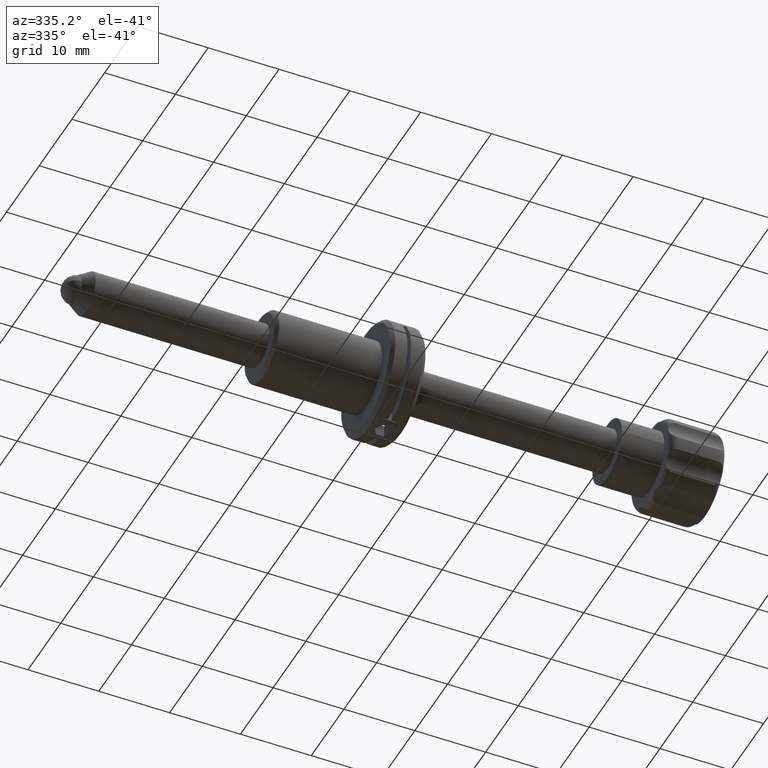
[diagram: clean part render]
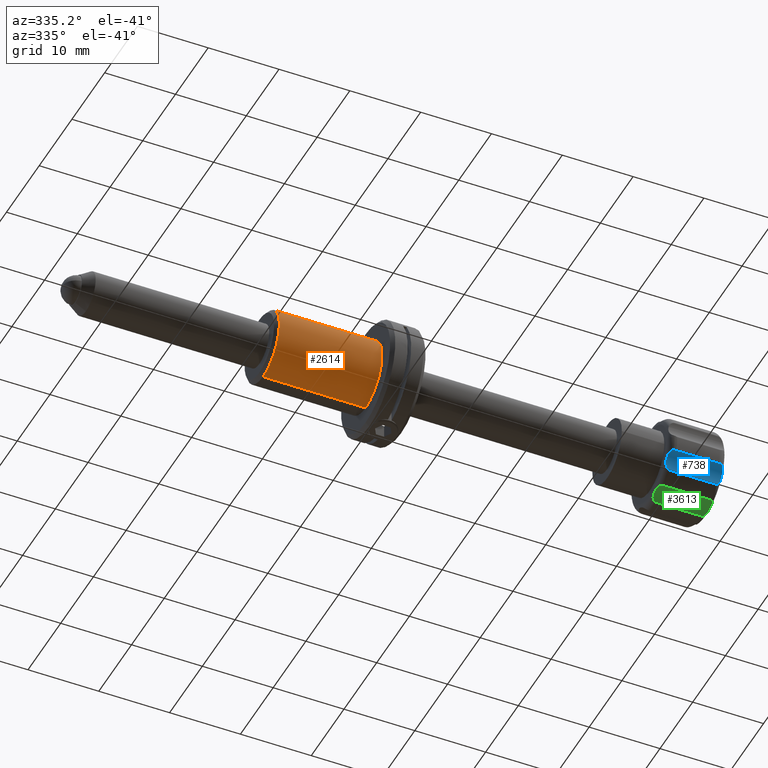
[diagram: same view with three faces highlighted in distinct colors, each labeled with its STEP entity id]
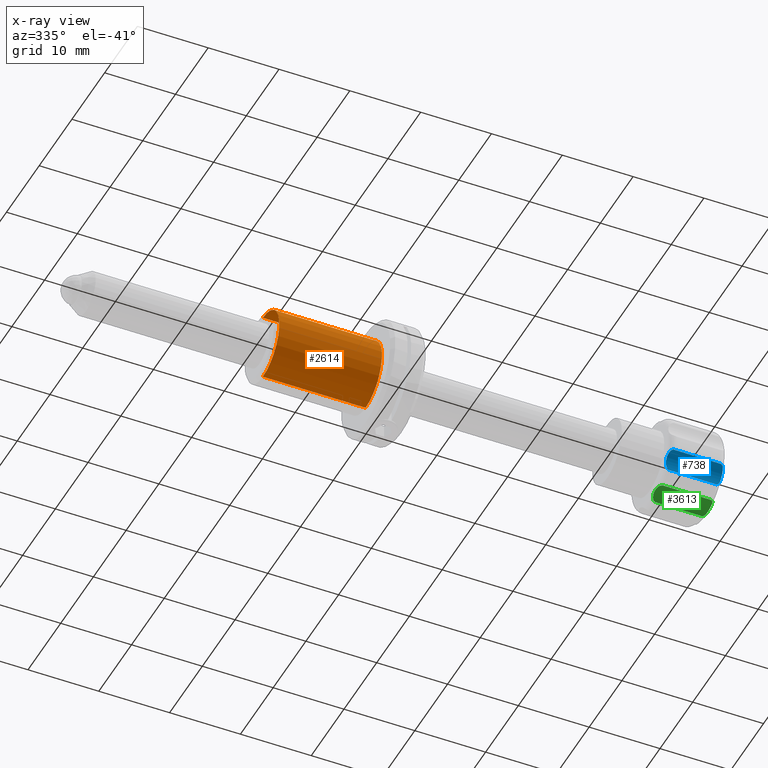
[diagram: x-ray of the same camera — body ghosted, the three highlighted faces saturated]
A machine part, auxiliary view with three faces highlighted in distinct colors.
The next image is the same camera in x-ray (body ghosted, the three faces saturated) — at least one of them is partly hidden behind the body in this view.
Their STEP definitions:

[orange] entity #2614 — the highlighted cylindrical surface (partial cylindrical patch) has radius 5 mm, axis along (-1, -0, -0).
#316 = CARTESIAN_POINT ( 'NONE',  ( -32.40644179797200800, 0.0000000000000000000, 4.999999999999999100 ) ) ;
#439 = VERTEX_POINT ( 'NONE', #4097 ) ;
#513 = VECTOR ( 'NONE', #2410, 1000.000000000000000 ) ;
#592 = AXIS2_PLACEMENT_3D ( 'NONE', #1815, #2129, #1830 ) ;
#719 = DIRECTION ( 'NONE',  ( 1.000000000000000000, 0.0000000000000000000, 0.0000000000000000000 ) ) ;
#775 = AXIS2_PLACEMENT_3D ( 'NONE', #3171, #1241, #3487 ) ;
#857 = ORIENTED_EDGE ( 'NONE', *, *, #3764, .F. ) ;
#1241 = DIRECTION ( 'NONE',  ( -1.000000000000000000, -0.0000000000000000000, -0.0000000000000000000 ) ) ;
#1321 = CIRCLE ( 'NONE', #2244, 4.999999999999999100 ) ;
#1343 = CARTESIAN_POINT ( 'NONE',  ( -14.54999999999999700, 6.123233995736765300E-016, -4.999999999999999100 ) ) ;
#1360 = ORIENTED_EDGE ( 'NONE', *, *, #3673, .T. ) ;
#1399 = VERTEX_POINT ( 'NONE', #3269 ) ;
#1651 = DIRECTION ( 'NONE',  ( -1.000000000000000000, -0.0000000000000000000, -0.0000000000000000000 ) ) ;
#1655 = CARTESIAN_POINT ( 'NONE',  ( -0.04999999999999449300, 6.123233995736766300E-016, -5.000000000000000000 ) ) ;
#1815 = CARTESIAN_POINT ( 'NONE',  ( -32.40644179797200800, 0.0000000000000000000, 0.0000000000000000000 ) ) ;
#1830 = DIRECTION ( 'NONE',  ( 0.0000000000000000000, 0.0000000000000000000, 1.000000000000000000 ) ) ;
#2086 = CARTESIAN_POINT ( 'NONE',  ( -32.40644179797200800, 6.123233995736765300E-016, -4.999999999999999100 ) ) ;
#2129 = DIRECTION ( 'NONE',  ( -1.000000000000000000, -0.0000000000000000000, -0.0000000000000000000 ) ) ;
#2138 = CIRCLE ( 'NONE', #775, 5.000000000000000000 ) ;
#2244 = AXIS2_PLACEMENT_3D ( 'NONE', #2662, #719, #2979 ) ;
#2410 = DIRECTION ( 'NONE',  ( -1.000000000000000000, -0.0000000000000000000, -0.0000000000000000000 ) ) ;
#2614 = ADVANCED_FACE ( 'NONE', ( #2880 ), #4095, .T. ) ;
#2662 = CARTESIAN_POINT ( 'NONE',  ( -14.54999999999999700, 0.0000000000000000000, 0.0000000000000000000 ) ) ;
#2771 = VERTEX_POINT ( 'NONE', #1655 ) ;
#2797 = VERTEX_POINT ( 'NONE', #1343 ) ;
#2880 = FACE_OUTER_BOUND ( 'NONE', #3482, .T. ) ;
#2979 = DIRECTION ( 'NONE',  ( 0.0000000000000000000, 0.0000000000000000000, -1.000000000000000000 ) ) ;
#3085 = VECTOR ( 'NONE', #1651, 1000.000000000000000 ) ;
#3090 = LINE ( 'NONE', #2086, #513 ) ;
#3127 = ORIENTED_EDGE ( 'NONE', *, *, #3486, .T. ) ;
#3171 = CARTESIAN_POINT ( 'NONE',  ( -0.04999999999999449300, 0.0000000000000000000, 0.0000000000000000000 ) ) ;
#3201 = EDGE_CURVE ( 'NONE', #1399, #439, #3937, .T. ) ;
#3269 = CARTESIAN_POINT ( 'NONE',  ( -0.04999999999999449300, 0.0000000000000000000, 5.000000000000000000 ) ) ;
#3389 = ORIENTED_EDGE ( 'NONE', *, *, #3201, .T. ) ;
#3482 = EDGE_LOOP ( 'NONE', ( #857, #3127, #3389, #1360 ) ) ;
#3486 = EDGE_CURVE ( 'NONE', #2771, #1399, #2138, .T. ) ;
#3487 = DIRECTION ( 'NONE',  ( 0.0000000000000000000, 0.0000000000000000000, 1.000000000000000000 ) ) ;
#3673 = EDGE_CURVE ( 'NONE', #439, #2797, #1321, .T. ) ;
#3764 = EDGE_CURVE ( 'NONE', #2771, #2797, #3090, .T. ) ;
#3937 = LINE ( 'NONE', #316, #3085 ) ;
#4095 = CYLINDRICAL_SURFACE ( 'NONE', #592, 4.999999999999999100 ) ;
#4097 = CARTESIAN_POINT ( 'NONE',  ( -14.54999999999999700, 0.0000000000000000000, 4.999999999999999100 ) ) ;

[blue] entity #738 — the highlighted cylindrical surface (edge-blend (fillet) strip) has radius 2.75 mm, axis along (-1, 0, -0).
#8 = ORIENTED_EDGE ( 'NONE', *, *, #572, .T. ) ;
#45 = CARTESIAN_POINT ( 'NONE',  ( 40.25804361074116100, -5.529702703571599500, -2.236683402746796600 ) ) ;
#64 = CARTESIAN_POINT ( 'NONE',  ( 40.13351138985506600, -4.878348550181328800, -3.046666745244276600 ) ) ;
#151 = CARTESIAN_POINT ( 'NONE',  ( 48.09076659436073700, -7.311137567084916400, -4.335581561354793200 ) ) ;
#370 = CARTESIAN_POINT ( 'NONE',  ( 40.44775316104475800, -5.810911346596066500, -2.028079787668628500 ) ) ;
#387 = CARTESIAN_POINT ( 'NONE',  ( 40.25821204246622600, -4.614926055760384400, -3.779552289039287400 ) ) ;
#417 = CARTESIAN_POINT ( 'NONE',  ( 40.53974654408667500, -4.562360833703431600, -4.226225560249417000 ) ) ;
#450 = CARTESIAN_POINT ( 'NONE',  ( 47.44732049996807900, -5.959700486087939500, -1.940562184375482600 ) ) ;
#572 = EDGE_CURVE ( 'NONE', #3771, #2854, #1881, .T. ) ;
#636 = ORIENTED_EDGE ( 'NONE', *, *, #637, .T. ) ;
#637 = EDGE_CURVE ( 'NONE', #2360, #3771, #858, .T. ) ;
#738 = ADVANCED_FACE ( 'NONE', ( #1389 ), #966, .F. ) ;
#755 = CARTESIAN_POINT ( 'NONE',  ( 47.44732049996807900, -5.959700486087939500, -1.940562184375482600 ) ) ;
#766 = CARTESIAN_POINT ( 'NONE',  ( 47.55905215516280300, -4.562350473330386800, -4.226994932551283700 ) ) ;
#858 = B_SPLINE_CURVE_WITH_KNOTS ( 'NONE', 3,
 ( #3033, #766, #2716, #1101, #3362, #3652, #1574, #1525, #2421, #1186, #1448, #1769, #2498, #1804, #3128, #870, #1164, #755 ),
 .UNSPECIFIED., .F., .F.,
 ( 4, 2, 2, 2, 2, 2, 2, 2, 4 ),
 ( 0.0004183084499995033700, 0.0008152739970678612600, 0.001212239544136219100, 0.001609205091204577100, 0.002006170638272934800, 0.002403136185341292800, 0.002800101732409650900, 0.003197067279478008500, 0.003594032826546366500 ),
 .UNSPECIFIED. ) ;
#870 = CARTESIAN_POINT ( 'NONE',  ( 47.65197480839385900, -5.811090463649204500, -2.027997261189377700 ) ) ;
#966 = CYLINDRICAL_SURFACE ( 'NONE', #4065, 2.749999999999999100 ) ;
#1101 = CARTESIAN_POINT ( 'NONE',  ( 47.79298408107022300, -4.593220206735229500, -3.901797778212949800 ) ) ;
#1164 = CARTESIAN_POINT ( 'NONE',  ( 47.56025345591332600, -5.896703292668299000, -1.976109597479680100 ) ) ;
#1186 = CARTESIAN_POINT ( 'NONE',  ( 47.96648861014491400, -5.013261247530604000, -2.819162020466631900 ) ) ;
#1197 = B_SPLINE_CURVE_WITH_KNOTS ( 'NONE', 3,
 ( #2629, #2958, #370, #2338, #45, #2005, #1702, #3604, #1368, #64, #2020, #3939, #2658, #387, #2350, #3348, #417, #3319 ),
 .UNSPECIFIED., .F., .F.,
 ( 4, 2, 2, 2, 2, 2, 2, 2, 4 ),
 ( 0.0004183084499995030900, 0.0008152739970678629900, 0.001212239544136222800, 0.001609205091204582800, 0.002006170638272942600, 0.002403136185341302400, 0.002800101732409662200, 0.003197067279478021900, 0.003594032826546381700 ),
 .UNSPECIFIED. ) ;
#1361 = ORIENTED_EDGE ( 'NONE', *, *, #1757, .T. ) ;
#1368 = CARTESIAN_POINT ( 'NONE',  ( 40.13345850479819200, -5.012315648373002500, -2.820595888153361500 ) ) ;
#1389 = FACE_OUTER_BOUND ( 'NONE', #2414, .T. ) ;
#1448 = CARTESIAN_POINT ( 'NONE',  ( 47.96078662551399000, -5.088099011018325500, -2.711415214625879900 ) ) ;
#1489 = VECTOR ( 'NONE', #3558, 1000.000000000000000 ) ;
#1518 = DIRECTION ( 'NONE',  ( -1.000000000000000000, 2.797561225103415000E-017, -1.489432096673009000E-016 ) ) ;
#1525 = CARTESIAN_POINT ( 'NONE',  ( 47.96074279915753600, -4.819425854650363700, -3.164612394226866700 ) ) ;
#1574 = CARTESIAN_POINT ( 'NONE',  ( 47.93351467224702100, -4.719053375038003000, -3.407736967908081100 ) ) ;
#1702 = CARTESIAN_POINT ( 'NONE',  ( 40.16648532775295200, -5.253676243472343200, -2.506196705703527300 ) ) ;
#1729 = CARTESIAN_POINT ( 'NONE',  ( 48.09076659436073700, -5.959700486098719300, -1.940562184369399200 ) ) ;
#1757 = EDGE_CURVE ( 'NONE', #2854, #2800, #1197, .T. ) ;
#1769 = CARTESIAN_POINT ( 'NONE',  ( 47.93359056029724700, -5.253340674784383600, -2.506568523226402800 ) ) ;
#1785 = VECTOR ( 'NONE', #3429, 1000.000000000000000 ) ;
#1804 = CARTESIAN_POINT ( 'NONE',  ( 47.84178795753376100, -5.529981407958628900, -2.236484659761846800 ) ) ;
#1881 = LINE ( 'NONE', #1729, #1785 ) ;
#2005 = CARTESIAN_POINT ( 'NONE',  ( 40.18767208449506300, -5.342440844706177700, -2.411233134368671500 ) ) ;
#2020 = CARTESIAN_POINT ( 'NONE',  ( 40.13921337448600500, -4.819702374864522000, -3.164015333362920800 ) ) ;
#2246 = LINE ( 'NONE', #2944, #1489 ) ;
#2318 = CARTESIAN_POINT ( 'NONE',  ( 40.65267950003190800, -4.561386866523674800, -4.298553399599728500 ) ) ;
#2338 = CARTESIAN_POINT ( 'NONE',  ( 40.30701591892974300, -5.626834790151411500, -2.158802449037434900 ) ) ;
#2350 = CARTESIAN_POINT ( 'NONE',  ( 40.30785379086182000, -4.592998944304817100, -3.903367445149767500 ) ) ;
#2360 = VERTEX_POINT ( 'NONE', #2627 ) ;
#2414 = EDGE_LOOP ( 'NONE', ( #1361, #3214, #636, #8 ) ) ;
#2421 = CARTESIAN_POINT ( 'NONE',  ( 47.96654149520178800, -4.879153136930129100, -3.045149255714306500 ) ) ;
#2498 = CARTESIAN_POINT ( 'NONE',  ( 47.91196777807302700, -5.343567414393134200, -2.410122457736372700 ) ) ;
#2627 = CARTESIAN_POINT ( 'NONE',  ( 47.44732049994645700, -4.561386866523487300, -4.298553399613564500 ) ) ;
#2629 = CARTESIAN_POINT ( 'NONE',  ( 40.65267950005351600, -5.959700486100000900, -1.940562184368677100 ) ) ;
#2658 = CARTESIAN_POINT ( 'NONE',  ( 40.18803222192695300, -4.677869858404243100, -3.532695367744360200 ) ) ;
#2716 = CARTESIAN_POINT ( 'NONE',  ( 47.65224683895524300, -4.566811295189091300, -4.126019013199321100 ) ) ;
#2800 = VERTEX_POINT ( 'NONE', #2318 ) ;
#2854 = VERTEX_POINT ( 'NONE', #2981 ) ;
#2944 = CARTESIAN_POINT ( 'NONE',  ( 48.09076659436073700, -4.561386866523507800, -4.298553399612095500 ) ) ;
#2958 = CARTESIAN_POINT ( 'NONE',  ( 40.54094784483715600, -5.897373412170500400, -1.975731469288455800 ) ) ;
#2981 = CARTESIAN_POINT ( 'NONE',  ( 40.65267950005351600, -5.959700486100000900, -1.940562184368677100 ) ) ;
#3033 = CARTESIAN_POINT ( 'NONE',  ( 47.44732049994645700, -4.561386866523487300, -4.298553399613564500 ) ) ;
#3128 = CARTESIAN_POINT ( 'NONE',  ( 47.79214620913817400, -5.628105970179328600, -2.157855394291265000 ) ) ;
#3214 = ORIENTED_EDGE ( 'NONE', *, *, #3243, .T. ) ;
#3243 = EDGE_CURVE ( 'NONE', #2800, #2360, #2246, .T. ) ;
#3319 = CARTESIAN_POINT ( 'NONE',  ( 40.65267950003190800, -4.561386866523674800, -4.298553399599728500 ) ) ;
#3348 = CARTESIAN_POINT ( 'NONE',  ( 40.44802519160614200, -4.566824797342886400, -4.126215764896519600 ) ) ;
#3362 = CARTESIAN_POINT ( 'NONE',  ( 47.84195638925881900, -4.614966760166447000, -3.779212409559546500 ) ) ;
#3429 = DIRECTION ( 'NONE',  ( -1.000000000000000000, 2.797561225103415000E-017, -1.489432096673009000E-016 ) ) ;
#3558 = DIRECTION ( 'NONE',  ( 1.000000000000000000, -2.797561225103415000E-017, 1.489432096673009000E-016 ) ) ;
#3604 = CARTESIAN_POINT ( 'NONE',  ( 40.13925720084244400, -5.088490268784309700, -2.710886194338314200 ) ) ;
#3652 = CARTESIAN_POINT ( 'NONE',  ( 47.91232791550491800, -4.678304055403286200, -3.531174106817645900 ) ) ;
#3771 = VERTEX_POINT ( 'NONE', #450 ) ;
#3938 = DIRECTION ( 'NONE',  ( 0.0000000000000000000, 0.9999319581571398700, 0.01166529279649605000 ) ) ;
#3939 = CARTESIAN_POINT ( 'NONE',  ( 40.16640943970274000, -4.719218668871253200, -3.407264175603425600 ) ) ;
#4065 = AXIS2_PLACEMENT_3D ( 'NONE', #151, #1518, #3938 ) ;

[green] entity #3613 — the highlighted cylindrical surface (edge-blend (fillet) strip) has radius 2.75 mm, axis along (-1, 0, -0).
#25 = CARTESIAN_POINT ( 'NONE',  ( 47.44732049994645700, -0.1858513267747641300, -6.264923843093254300 ) ) ;
#35 = CARTESIAN_POINT ( 'NONE',  ( 47.93351467224703600, -0.9272407237627350300, -5.746508560778524500 ) ) ;
#94 = VECTOR ( 'NONE', #1140, 1000.000000000000000 ) ;
#356 = CARTESIAN_POINT ( 'NONE',  ( 47.96654149520178800, -1.296836581130144600, -5.603327958011664800 ) ) ;
#399 = VECTOR ( 'NONE', #3436, 1000.000000000000000 ) ;
#469 = CARTESIAN_POINT ( 'NONE',  ( 47.44732049996807900, -2.841959947667451700, -5.586329307439633900 ) ) ;
#514 = CARTESIAN_POINT ( 'NONE',  ( 40.16640943970274000, -0.9276919187978032200, -5.746291126524205600 ) ) ;
#581 = ORIENTED_EDGE ( 'NONE', *, *, #3827, .T. ) ;
#689 = ORIENTED_EDGE ( 'NONE', *, *, #1543, .T. ) ;
#690 = CARTESIAN_POINT ( 'NONE',  ( 47.96078662551399000, -1.680569229165275000, -5.515089398913964700 ) ) ;
#751 = CARTESIAN_POINT ( 'NONE',  ( 40.44775316104475100, -2.674865847404057200, -5.543003788699795800 ) ) ;
#943 = ORIENTED_EDGE ( 'NONE', *, *, #2796, .T. ) ;
#958 = LINE ( 'NONE', #3074, #94 ) ;
#973 = DIRECTION ( 'NONE',  ( -1.000000000000000000, 2.797561225103415000E-017, -1.489432096673009000E-016 ) ) ;
#984 = DIRECTION ( 'NONE',  ( 0.0000000000000000000, 0.9999319581571398700, 0.01166529279649573300 ) ) ;
#1017 = CARTESIAN_POINT ( 'NONE',  ( 47.91196777807302700, -2.074258821089464800, -5.482686687800230300 ) ) ;
#1140 = DIRECTION ( 'NONE',  ( -1.000000000000000000, 2.797561225103415000E-017, -1.489432096673009000E-016 ) ) ;
#1146 = AXIS2_PLACEMENT_3D ( 'NONE', #3878, #973, #984 ) ;
#1357 = CARTESIAN_POINT ( 'NONE',  ( 47.79214620913817400, -2.453837714626961700, -5.505506078873623600 ) ) ;
#1364 = CARTESIAN_POINT ( 'NONE',  ( 40.18767208449506300, -2.072676849045921100, -5.482675449713511300 ) ) ;
#1412 = CARTESIAN_POINT ( 'NONE',  ( 40.25804361074116100, -2.328516278191383700, -5.491664281090727700 ) ) ;
#1423 = CARTESIAN_POINT ( 'NONE',  ( 40.54094784483715600, -2.773019611197469600, -5.567125850672541200 ) ) ;
#1433 = CARTESIAN_POINT ( 'NONE',  ( 40.25821204246624100, -0.5906984552737961600, -5.935792562131496200 ) ) ;
#1481 = CARTESIAN_POINT ( 'NONE',  ( 40.65267950003195100, -0.1858513267846641500, -6.264923843083618500 ) ) ;
#1543 = EDGE_CURVE ( 'NONE', #2747, #3979, #2918, .T. ) ;
#1629 = CYLINDRICAL_SURFACE ( 'NONE', #1146, 2.749999999999999600 ) ;
#1674 = CARTESIAN_POINT ( 'NONE',  ( 47.79298408107022300, -0.4889094878725610500, -6.006884823458537200 ) ) ;
#1691 = CARTESIAN_POINT ( 'NONE',  ( 47.56025345591332600, -2.772278388145088500, -5.566919381636502400 ) ) ;
#1693 = CARTESIAN_POINT ( 'NONE',  ( 40.16648532775295200, -1.942761412327587100, -5.487058783508316200 ) ) ;
#1802 = CARTESIAN_POINT ( 'NONE',  ( 40.30785379086184200, -0.4876431095723420300, -6.007838289428822700 ) ) ;
#1911 = CARTESIAN_POINT ( 'NONE',  ( 40.65267950003195100, -0.1858513267846641500, -6.264923843083618500 ) ) ;
#1968 = CARTESIAN_POINT ( 'NONE',  ( 47.44732049994645700, -0.1858513267747641300, -6.264923843093254300 ) ) ;
#1995 = CARTESIAN_POINT ( 'NONE',  ( 47.91232791550492500, -0.8111433655470704500, -5.804977678509297700 ) ) ;
#2028 = CARTESIAN_POINT ( 'NONE',  ( 40.13351138985505900, -1.295194625246970200, -5.603832056402565900 ) ) ;
#2053 = CARTESIAN_POINT ( 'NONE',  ( 40.13921337448601200, -1.170747534568439100, -5.645340930566757900 ) ) ;
#2063 = CARTESIAN_POINT ( 'NONE',  ( 40.65267950005351600, -2.841959947680793500, -5.586329307443350000 ) ) ;
#2083 = CARTESIAN_POINT ( 'NONE',  ( 40.53974654408671800, -0.2376835312552929600, -6.214469036207908000 ) ) ;
#2252 = LINE ( 'NONE', #2732, #399 ) ;
#2330 = CARTESIAN_POINT ( 'NONE',  ( 47.96074279915755100, -1.170129819464220200, -5.645567587033858600 ) ) ;
#2609 = CARTESIAN_POINT ( 'NONE',  ( 40.65267950005351600, -2.841959947680793500, -5.586329307443350000 ) ) ;
#2635 = CARTESIAN_POINT ( 'NONE',  ( 47.96648861014491400, -1.551462442053087800, -5.538359605924148000 ) ) ;
#2692 = CARTESIAN_POINT ( 'NONE',  ( 40.18803222192695300, -0.8097606479874127600, -5.805746348784151000 ) ) ;
#2732 = CARTESIAN_POINT ( 'NONE',  ( 48.05099999999998800, -0.1858513267758182800, -6.264923843092229400 ) ) ;
#2747 = VERTEX_POINT ( 'NONE', #2609 ) ;
#2796 = EDGE_CURVE ( 'NONE', #3222, #3789, #3940, .T. ) ;
#2918 = B_SPLINE_CURVE_WITH_KNOTS ( 'NONE', 3,
 ( #2063, #1423, #751, #3639, #1412, #1364, #1693, #3285, #3401, #2028, #2053, #514, #2692, #1433, #1802, #3711, #2083, #1481 ),
 .UNSPECIFIED., .F., .F.,
 ( 4, 2, 2, 2, 2, 2, 2, 2, 4 ),
 ( 0.0004183084499995033100, 0.0008152739970678690600, 0.001212239544136234700, 0.001609205091204600600, 0.002006170638272966400, 0.002403136185341331900, 0.002800101732409698100, 0.003197067279478063100, 0.003594032826546428600 ),
 .UNSPECIFIED. ) ;
#2949 = CARTESIAN_POINT ( 'NONE',  ( 47.93359056029724700, -1.942261214740999000, -5.487084415305292700 ) ) ;
#3040 = ORIENTED_EDGE ( 'NONE', *, *, #3845, .T. ) ;
#3074 = CARTESIAN_POINT ( 'NONE',  ( 48.05099999999998100, -2.841959947679376400, -5.586329307442953900 ) ) ;
#3222 = VERTEX_POINT ( 'NONE', #1968 ) ;
#3265 = CARTESIAN_POINT ( 'NONE',  ( 47.55905215516280300, -0.2371321769933718300, -6.215005738689757900 ) ) ;
#3282 = CARTESIAN_POINT ( 'NONE',  ( 47.84178795753376100, -2.328853884465777600, -5.491720822340370800 ) ) ;
#3285 = CARTESIAN_POINT ( 'NONE',  ( 40.13925720084242200, -1.681219964017498700, -5.514991986100763000 ) ) ;
#3401 = CARTESIAN_POINT ( 'NONE',  ( 40.13345850479819200, -1.549779904911830200, -5.538704863912136600 ) ) ;
#3436 = DIRECTION ( 'NONE',  ( 1.000000000000000000, -2.797561225103415000E-017, 1.489432096673009000E-016 ) ) ;
#3578 = CARTESIAN_POINT ( 'NONE',  ( 47.65224683895524300, -0.3116872116896466400, -6.146759258765390800 ) ) ;
#3596 = CARTESIAN_POINT ( 'NONE',  ( 47.65197480839385900, -2.675050857320067500, -5.543072088549590300 ) ) ;
#3613 = ADVANCED_FACE ( 'NONE', ( #3630 ), #1629, .F. ) ;
#3630 = FACE_OUTER_BOUND ( 'NONE', #3813, .T. ) ;
#3639 = CARTESIAN_POINT ( 'NONE',  ( 40.30701591892975000, -2.452269185775936200, -5.505276887688949300 ) ) ;
#3711 = CARTESIAN_POINT ( 'NONE',  ( 40.44802519160616300, -0.3115576346948337700, -6.146907930689223100 ) ) ;
#3789 = VERTEX_POINT ( 'NONE', #469 ) ;
#3813 = EDGE_LOOP ( 'NONE', ( #689, #581, #943, #3040 ) ) ;
#3827 = EDGE_CURVE ( 'NONE', #3979, #3222, #2252, .T. ) ;
#3845 = EDGE_CURVE ( 'NONE', #3789, #2747, #958, .T. ) ;
#3878 = CARTESIAN_POINT ( 'NONE',  ( 48.05099999999998800, -2.104035829452111500, -8.235474074294797800 ) ) ;
#3914 = CARTESIAN_POINT ( 'NONE',  ( 47.84195638925882600, -0.5909675687202870000, -5.935581013408112000 ) ) ;
#3932 = CARTESIAN_POINT ( 'NONE',  ( 47.44732049996807900, -2.841959947667451700, -5.586329307439633900 ) ) ;
#3940 = B_SPLINE_CURVE_WITH_KNOTS ( 'NONE', 3,
 ( #25, #3265, #3578, #1674, #3914, #1995, #35, #2330, #356, #2635, #690, #2949, #1017, #3282, #1357, #3596, #1691, #3932 ),
 .UNSPECIFIED., .F., .F.,
 ( 4, 2, 2, 2, 2, 2, 2, 2, 4 ),
 ( 0.0004183084499995032600, 0.0008152739970678618000, 0.001212239544136220400, 0.001609205091204578900, 0.002006170638272937400, 0.002403136185341296300, 0.002800101732409654800, 0.003197067279478013300, 0.003594032826546371800 ),
 .UNSPECIFIED. ) ;
#3979 = VERTEX_POINT ( 'NONE', #1911 ) ;